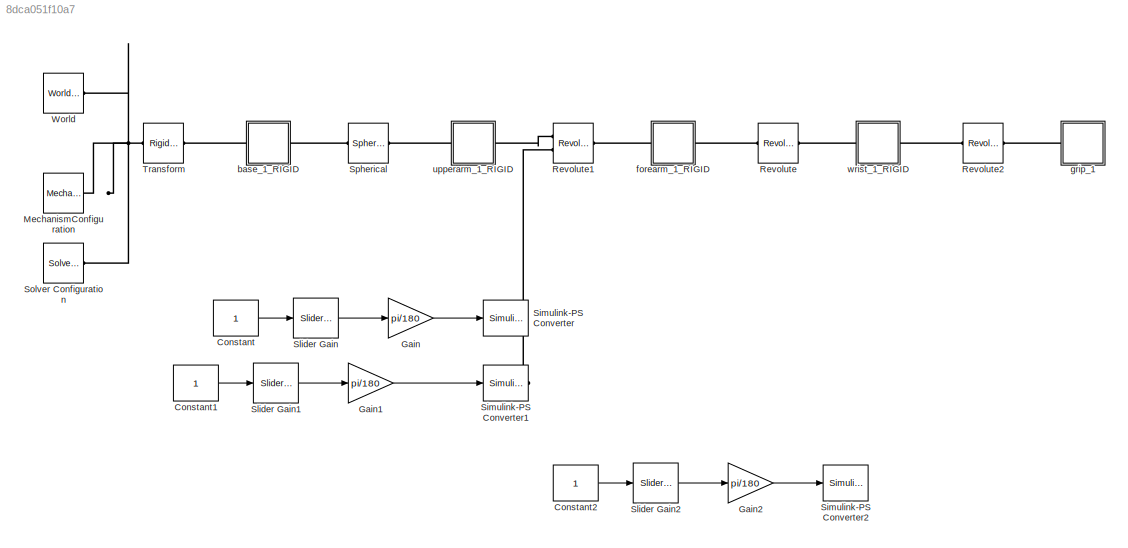
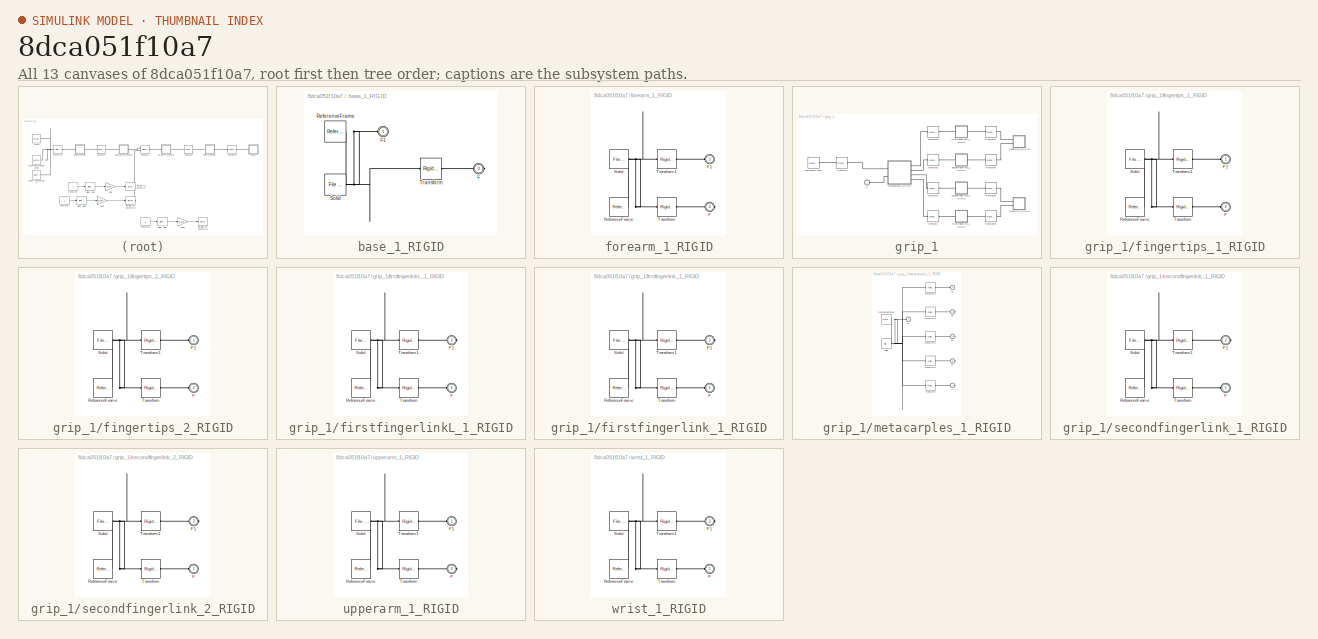
[diagram: thumbnail index - all 13 canvases of the model, root first then tree order]
MODEL slx_8dca051f10a7
KIND model
CONFIG AbsTol = auto
CONFIG EnableMultiTasking = off
CONFIG FixedStep = auto
CONFIG MaxStep = auto
CONFIG MinStep = auto
CONFIG RelTol = 1e-3
CONFIG SampleTimeConstraint = Unconstrained
CONFIG SolverName = VariableStepAuto
CONFIG StartTime = 0.0
CONFIG StopTime = 10.0
WORKSPACE source: external: MATLAB File  (data not in archive)
BLOCK [Constant] Constant
BLOCK [Constant] Constant1
BLOCK [Constant] Constant2
BLOCK [Gain] Gain
  Gain = pi/180
BLOCK [Gain] Gain1
  Gain = pi/180
BLOCK [Gain] Gain2
  Gain = pi/180
BLOCK [Reference] MechanismConfiguration  REF=sm_lib/Utilities/Mechanism
Configuration
  Ports = [0, 0, 0, 0, 0, 0, 1]
  SourceBlock = sm_lib/Utilities/Mechanism\nConfiguration
  SourceProductBaseCode = MS
  SourceType = Mechanism\nConfiguration
BLOCK [Reference] Revolute  REF=sm_lib/Joints/Revolute Joint
  Ports = [0, 0, 0, 0, 0, 1, 1]
  SourceBlock = sm_lib/Joints/Revolute Joint
  SourceProductBaseCode = MS
  SourceType = Revolute Joint
BLOCK [Reference] Revolute1  REF=sm_lib/Joints/Revolute Joint
  Ports = [0, 0, 0, 0, 0, 2, 1]
  SourceBlock = sm_lib/Joints/Revolute Joint
  SourceProductBaseCode = MS
  SourceType = Revolute Joint
BLOCK [Reference] Revolute2  REF=sm_lib/Joints/Revolute Joint
  Ports = [0, 0, 0, 0, 0, 1, 1]
  SourceBlock = sm_lib/Joints/Revolute Joint
  SourceProductBaseCode = MS
  SourceType = Revolute Joint
BLOCK [Reference] Simulink-PS Converter  REF=nesl_utility/Simulink-PS
Converter
  Ports = [1, 0, 0, 0, 0, 0, 1]
  SourceBlock = nesl_utility/Simulink-PS\nConverter
  SourceProductBaseCode = SS
  SourceType = Simulink-PS\nConverter
BLOCK [Reference] Simulink-PS Converter1  REF=nesl_utility/Simulink-PS
Converter
  Ports = [1, 0, 0, 0, 0, 0, 1]
  SourceBlock = nesl_utility/Simulink-PS\nConverter
  SourceProductBaseCode = SS
  SourceType = Simulink-PS\nConverter
BLOCK [Reference] Simulink-PS Converter2  REF=nesl_utility/Simulink-PS
Converter
  Ports = [1, 0, 0, 0, 0, 0, 1]
  SourceBlock = nesl_utility/Simulink-PS\nConverter
  SourceProductBaseCode = SS
  SourceType = Simulink-PS\nConverter
BLOCK [Reference] Slider Gain  REF=simulink/Math
Operations/Slider
Gain
  Ports = [1, 1]
  SourceBlock = simulink/Math\nOperations/Slider\nGain
  SourceProductBaseCode = SL
  SourceType = Slider Gain
BLOCK [Reference] Slider Gain1  REF=simulink/Math
Operations/Slider
Gain
  Ports = [1, 1]
  SourceBlock = simulink/Math\nOperations/Slider\nGain
  SourceProductBaseCode = SL
  SourceType = Slider Gain
BLOCK [Reference] Slider Gain2  REF=simulink/Math
Operations/Slider
Gain
  Ports = [1, 1]
  SourceBlock = simulink/Math\nOperations/Slider\nGain
  SourceProductBaseCode = SL
  SourceType = Slider Gain
BLOCK [Reference] Solver Configuration  REF=nesl_utility/Solver
Configuration
  Ports = [0, 0, 0, 0, 0, 0, 1]
  SourceBlock = nesl_utility/Solver\nConfiguration
  SourceProductBaseCode = SS
  SourceType = Solver\nConfiguration
BLOCK [Reference] Spherical  REF=sm_lib/Joints/Spherical
Joint
  Ports = [0, 0, 0, 0, 0, 1, 1]
  SourceBlock = sm_lib/Joints/Spherical\nJoint
  SourceProductBaseCode = MS
  SourceType = Spherical\nJoint
BLOCK [Reference] Transform  REF=sm_lib/Frames and
Transforms/Rigid
Transform
  Ports = [0, 0, 0, 0, 0, 1, 1]
  SourceBlock = sm_lib/Frames and\nTransforms/Rigid\nTransform
  SourceProductBaseCode = MS
  SourceType = Rigid\nTransform
BLOCK [Reference] World  REF=sm_lib/Frames and
Transforms/World Frame
  Ports = [0, 0, 0, 0, 0, 0, 1]
  SourceBlock = sm_lib/Frames and\nTransforms/World Frame
  SourceProductBaseCode = MS
  SourceType = World Frame
BLOCK [SubSystem] base_1_RIGID
  Ports = [0, 0, 0, 0, 0, 1, 1]
  RequestExecContextInheritance = off
BLOCK [PMIOPort] base_1_RIGID/F
  Port = 2
  Side = Right
BLOCK [PMIOPort] base_1_RIGID/F1
  Side = Left
BLOCK [Reference] base_1_RIGID/ReferenceFrame  REF=sm_lib/Frames and
Transforms/Reference
Frame
  Ports = [0, 0, 0, 0, 0, 0, 1]
  SourceBlock = sm_lib/Frames and\nTransforms/Reference\nFrame
  SourceProductBaseCode = MS
  SourceType = Reference\nFrame
BLOCK [Reference] base_1_RIGID/Solid  REF=sm_lib/Body Elements/File Solid
  Ports = [0, 0, 0, 0, 0, 0, 1]
  SourceBlock = sm_lib/Body Elements/File Solid
  SourceProductBaseCode = MS
  SourceType = File Solid
BLOCK [Reference] base_1_RIGID/Transform  REF=sm_lib/Frames and
Transforms/Rigid
Transform
  Ports = [0, 0, 0, 0, 0, 1, 1]
  SourceBlock = sm_lib/Frames and\nTransforms/Rigid\nTransform
  SourceProductBaseCode = MS
  SourceType = Rigid\nTransform
BLOCK [SubSystem] forearm_1_RIGID
  Ports = [0, 0, 0, 0, 0, 1, 1]
  RequestExecContextInheritance = off
BLOCK [PMIOPort] forearm_1_RIGID/F
  Port = 2
  Side = Right
BLOCK [PMIOPort] forearm_1_RIGID/F1
  Side = Left
BLOCK [Reference] forearm_1_RIGID/ReferenceFrame  REF=sm_lib/Frames and
Transforms/Reference
Frame
  Ports = [0, 0, 0, 0, 0, 0, 1]
  SourceBlock = sm_lib/Frames and\nTransforms/Reference\nFrame
  SourceProductBaseCode = MS
  SourceType = Reference\nFrame
BLOCK [Reference] forearm_1_RIGID/Solid  REF=sm_lib/Body Elements/File Solid
  Ports = [0, 0, 0, 0, 0, 0, 1]
  SourceBlock = sm_lib/Body Elements/File Solid
  SourceProductBaseCode = MS
  SourceType = File Solid
BLOCK [Reference] forearm_1_RIGID/Transform  REF=sm_lib/Frames and
Transforms/Rigid
Transform
  Ports = [0, 0, 0, 0, 0, 1, 1]
  SourceBlock = sm_lib/Frames and\nTransforms/Rigid\nTransform
  SourceProductBaseCode = MS
  SourceType = Rigid\nTransform
BLOCK [Reference] forearm_1_RIGID/Transform1  REF=sm_lib/Frames and
Transforms/Rigid
Transform
  Ports = [0, 0, 0, 0, 0, 1, 1]
  SourceBlock = sm_lib/Frames and\nTransforms/Rigid\nTransform
  SourceProductBaseCode = MS
  SourceType = Rigid\nTransform
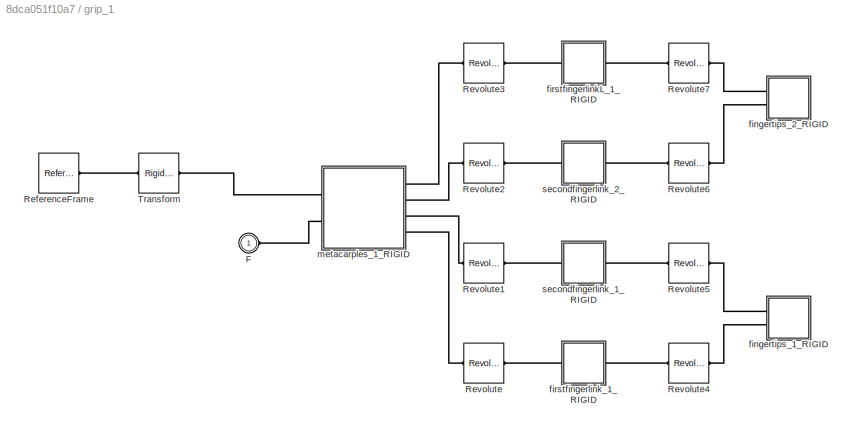
BLOCK [SubSystem] grip_1
  Ports = [0, 0, 0, 0, 0, 1]
  RequestExecContextInheritance = off
BLOCK [PMIOPort] grip_1/F
  Side = Left
BLOCK [Reference] grip_1/ReferenceFrame  REF=sm_lib/Frames and
Transforms/Reference
Frame
  Ports = [0, 0, 0, 0, 0, 0, 1]
  SourceBlock = sm_lib/Frames and\nTransforms/Reference\nFrame
  SourceProductBaseCode = MS
  SourceType = Reference\nFrame
BLOCK [Reference] grip_1/Revolute  REF=sm_lib/Joints/Revolute Joint
  Ports = [0, 0, 0, 0, 0, 1, 1]
  SourceBlock = sm_lib/Joints/Revolute Joint
  SourceProductBaseCode = MS
  SourceType = Revolute Joint
BLOCK [Reference] grip_1/Revolute1  REF=sm_lib/Joints/Revolute Joint
  Ports = [0, 0, 0, 0, 0, 1, 1]
  SourceBlock = sm_lib/Joints/Revolute Joint
  SourceProductBaseCode = MS
  SourceType = Revolute Joint
BLOCK [Reference] grip_1/Revolute2  REF=sm_lib/Joints/Revolute Joint
  Ports = [0, 0, 0, 0, 0, 1, 1]
  SourceBlock = sm_lib/Joints/Revolute Joint
  SourceProductBaseCode = MS
  SourceType = Revolute Joint
BLOCK [Reference] grip_1/Revolute3  REF=sm_lib/Joints/Revolute Joint
  Ports = [0, 0, 0, 0, 0, 1, 1]
  SourceBlock = sm_lib/Joints/Revolute Joint
  SourceProductBaseCode = MS
  SourceType = Revolute Joint
BLOCK [Reference] grip_1/Revolute4  REF=sm_lib/Joints/Revolute Joint
  Ports = [0, 0, 0, 0, 0, 1, 1]
  SourceBlock = sm_lib/Joints/Revolute Joint
  SourceProductBaseCode = MS
  SourceType = Revolute Joint
BLOCK [Reference] grip_1/Revolute5  REF=sm_lib/Joints/Revolute Joint
  Ports = [0, 0, 0, 0, 0, 1, 1]
  SourceBlock = sm_lib/Joints/Revolute Joint
  SourceProductBaseCode = MS
  SourceType = Revolute Joint
BLOCK [Reference] grip_1/Revolute6  REF=sm_lib/Joints/Revolute Joint
  Ports = [0, 0, 0, 0, 0, 1, 1]
  SourceBlock = sm_lib/Joints/Revolute Joint
  SourceProductBaseCode = MS
  SourceType = Revolute Joint
BLOCK [Reference] grip_1/Revolute7  REF=sm_lib/Joints/Revolute Joint
  Ports = [0, 0, 0, 0, 0, 1, 1]
  SourceBlock = sm_lib/Joints/Revolute Joint
  SourceProductBaseCode = MS
  SourceType = Revolute Joint
BLOCK [Reference] grip_1/Transform  REF=sm_lib/Frames and
Transforms/Rigid
Transform
  Ports = [0, 0, 0, 0, 0, 1, 1]
  SourceBlock = sm_lib/Frames and\nTransforms/Rigid\nTransform
  SourceProductBaseCode = MS
  SourceType = Rigid\nTransform
BLOCK [SubSystem] grip_1/fingertips_1_RIGID
  Ports = [0, 0, 0, 0, 0, 2]
  RequestExecContextInheritance = off
BLOCK [PMIOPort] grip_1/fingertips_1_RIGID/F
  Port = 2
  Side = Left
BLOCK [PMIOPort] grip_1/fingertips_1_RIGID/F1
  Side = Left
BLOCK [Reference] grip_1/fingertips_1_RIGID/ReferenceFrame  REF=sm_lib/Frames and
Transforms/Reference
Frame
  Ports = [0, 0, 0, 0, 0, 0, 1]
  SourceBlock = sm_lib/Frames and\nTransforms/Reference\nFrame
  SourceProductBaseCode = MS
  SourceType = Reference\nFrame
BLOCK [Reference] grip_1/fingertips_1_RIGID/Solid  REF=sm_lib/Body Elements/File Solid
  Ports = [0, 0, 0, 0, 0, 0, 1]
  SourceBlock = sm_lib/Body Elements/File Solid
  SourceProductBaseCode = MS
  SourceType = File Solid
BLOCK [Reference] grip_1/fingertips_1_RIGID/Transform  REF=sm_lib/Frames and
Transforms/Rigid
Transform
  Ports = [0, 0, 0, 0, 0, 1, 1]
  SourceBlock = sm_lib/Frames and\nTransforms/Rigid\nTransform
  SourceProductBaseCode = MS
  SourceType = Rigid\nTransform
BLOCK [Reference] grip_1/fingertips_1_RIGID/Transform1  REF=sm_lib/Frames and
Transforms/Rigid
Transform
  Ports = [0, 0, 0, 0, 0, 1, 1]
  SourceBlock = sm_lib/Frames and\nTransforms/Rigid\nTransform
  SourceProductBaseCode = MS
  SourceType = Rigid\nTransform
BLOCK [SubSystem] grip_1/fingertips_2_RIGID
  Ports = [0, 0, 0, 0, 0, 2]
  RequestExecContextInheritance = off
BLOCK [PMIOPort] grip_1/fingertips_2_RIGID/F
  Port = 2
  Side = Left
BLOCK [PMIOPort] grip_1/fingertips_2_RIGID/F1
  Side = Left
BLOCK [Reference] grip_1/fingertips_2_RIGID/ReferenceFrame  REF=sm_lib/Frames and
Transforms/Reference
Frame
  Ports = [0, 0, 0, 0, 0, 0, 1]
  SourceBlock = sm_lib/Frames and\nTransforms/Reference\nFrame
  SourceProductBaseCode = MS
  SourceType = Reference\nFrame
BLOCK [Reference] grip_1/fingertips_2_RIGID/Solid  REF=sm_lib/Body Elements/File Solid
  Ports = [0, 0, 0, 0, 0, 0, 1]
  SourceBlock = sm_lib/Body Elements/File Solid
  SourceProductBaseCode = MS
  SourceType = File Solid
BLOCK [Reference] grip_1/fingertips_2_RIGID/Transform  REF=sm_lib/Frames and
Transforms/Rigid
Transform
  Ports = [0, 0, 0, 0, 0, 1, 1]
  SourceBlock = sm_lib/Frames and\nTransforms/Rigid\nTransform
  SourceProductBaseCode = MS
  SourceType = Rigid\nTransform
BLOCK [Reference] grip_1/fingertips_2_RIGID/Transform1  REF=sm_lib/Frames and
Transforms/Rigid
Transform
  Ports = [0, 0, 0, 0, 0, 1, 1]
  SourceBlock = sm_lib/Frames and\nTransforms/Rigid\nTransform
  SourceProductBaseCode = MS
  SourceType = Rigid\nTransform
BLOCK [SubSystem] grip_1/firstfingerlinkL_1_RIGID
  Ports = [0, 0, 0, 0, 0, 1, 1]
  RequestExecContextInheritance = off
BLOCK [PMIOPort] grip_1/firstfingerlinkL_1_RIGID/F
  Side = Left
BLOCK [PMIOPort] grip_1/firstfingerlinkL_1_RIGID/F1
  Port = 2
  Side = Right
BLOCK [Reference] grip_1/firstfingerlinkL_1_RIGID/ReferenceFrame  REF=sm_lib/Frames and
Transforms/Reference
Frame
  Ports = [0, 0, 0, 0, 0, 0, 1]
  SourceBlock = sm_lib/Frames and\nTransforms/Reference\nFrame
  SourceProductBaseCode = MS
  SourceType = Reference\nFrame
BLOCK [Reference] grip_1/firstfingerlinkL_1_RIGID/Solid  REF=sm_lib/Body Elements/File Solid
  Ports = [0, 0, 0, 0, 0, 0, 1]
  SourceBlock = sm_lib/Body Elements/File Solid
  SourceProductBaseCode = MS
  SourceType = File Solid
BLOCK [Reference] grip_1/firstfingerlinkL_1_RIGID/Transform  REF=sm_lib/Frames and
Transforms/Rigid
Transform
  Ports = [0, 0, 0, 0, 0, 1, 1]
  SourceBlock = sm_lib/Frames and\nTransforms/Rigid\nTransform
  SourceProductBaseCode = MS
  SourceType = Rigid\nTransform
BLOCK [Reference] grip_1/firstfingerlinkL_1_RIGID/Transform1  REF=sm_lib/Frames and
Transforms/Rigid
Transform
  Ports = [0, 0, 0, 0, 0, 1, 1]
  SourceBlock = sm_lib/Frames and\nTransforms/Rigid\nTransform
  SourceProductBaseCode = MS
  SourceType = Rigid\nTransform
BLOCK [SubSystem] grip_1/firstfingerlink_1_RIGID
  Ports = [0, 0, 0, 0, 0, 1, 1]
  RequestExecContextInheritance = off
BLOCK [PMIOPort] grip_1/firstfingerlink_1_RIGID/F
  Side = Left
BLOCK [PMIOPort] grip_1/firstfingerlink_1_RIGID/F1
  Port = 2
  Side = Right
BLOCK [Reference] grip_1/firstfingerlink_1_RIGID/ReferenceFrame  REF=sm_lib/Frames and
Transforms/Reference
Frame
  Ports = [0, 0, 0, 0, 0, 0, 1]
  SourceBlock = sm_lib/Frames and\nTransforms/Reference\nFrame
  SourceProductBaseCode = MS
  SourceType = Reference\nFrame
BLOCK [Reference] grip_1/firstfingerlink_1_RIGID/Solid  REF=sm_lib/Body Elements/File Solid
  Ports = [0, 0, 0, 0, 0, 0, 1]
  SourceBlock = sm_lib/Body Elements/File Solid
  SourceProductBaseCode = MS
  SourceType = File Solid
BLOCK [Reference] grip_1/firstfingerlink_1_RIGID/Transform  REF=sm_lib/Frames and
Transforms/Rigid
Transform
  Ports = [0, 0, 0, 0, 0, 1, 1]
  SourceBlock = sm_lib/Frames and\nTransforms/Rigid\nTransform
  SourceProductBaseCode = MS
  SourceType = Rigid\nTransform
BLOCK [Reference] grip_1/firstfingerlink_1_RIGID/Transform1  REF=sm_lib/Frames and
Transforms/Rigid
Transform
  Ports = [0, 0, 0, 0, 0, 1, 1]
  SourceBlock = sm_lib/Frames and\nTransforms/Rigid\nTransform
  SourceProductBaseCode = MS
  SourceType = Rigid\nTransform
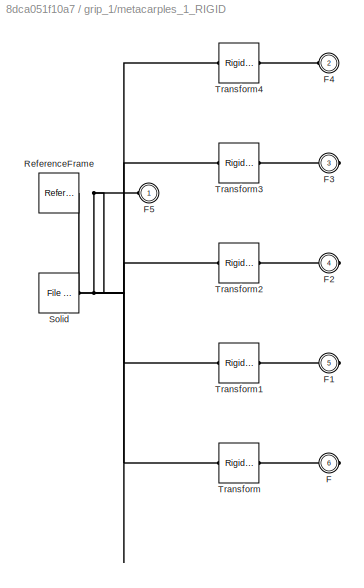
BLOCK [SubSystem] grip_1/metacarples_1_RIGID
  Ports = [0, 0, 0, 0, 0, 2, 4]
  RequestExecContextInheritance = off
BLOCK [PMIOPort] grip_1/metacarples_1_RIGID/F
  Port = 6
  Side = Right
BLOCK [PMIOPort] grip_1/metacarples_1_RIGID/F1
  Port = 5
  Side = Right
BLOCK [PMIOPort] grip_1/metacarples_1_RIGID/F2
  Port = 4
  Side = Right
BLOCK [PMIOPort] grip_1/metacarples_1_RIGID/F3
  Port = 3
  Side = Right
BLOCK [PMIOPort] grip_1/metacarples_1_RIGID/F4
  Port = 2
  Side = Left
BLOCK [PMIOPort] grip_1/metacarples_1_RIGID/F5
  Side = Left
BLOCK [Reference] grip_1/metacarples_1_RIGID/ReferenceFrame  REF=sm_lib/Frames and
Transforms/Reference
Frame
  Ports = [0, 0, 0, 0, 0, 0, 1]
  SourceBlock = sm_lib/Frames and\nTransforms/Reference\nFrame
  SourceProductBaseCode = MS
  SourceType = Reference\nFrame
BLOCK [Reference] grip_1/metacarples_1_RIGID/Solid  REF=sm_lib/Body Elements/File Solid
  Ports = [0, 0, 0, 0, 0, 0, 1]
  SourceBlock = sm_lib/Body Elements/File Solid
  SourceProductBaseCode = MS
  SourceType = File Solid
BLOCK [Reference] grip_1/metacarples_1_RIGID/Transform  REF=sm_lib/Frames and
Transforms/Rigid
Transform
  Ports = [0, 0, 0, 0, 0, 1, 1]
  SourceBlock = sm_lib/Frames and\nTransforms/Rigid\nTransform
  SourceProductBaseCode = MS
  SourceType = Rigid\nTransform
BLOCK [Reference] grip_1/metacarples_1_RIGID/Transform1  REF=sm_lib/Frames and
Transforms/Rigid
Transform
  Ports = [0, 0, 0, 0, 0, 1, 1]
  SourceBlock = sm_lib/Frames and\nTransforms/Rigid\nTransform
  SourceProductBaseCode = MS
  SourceType = Rigid\nTransform
BLOCK [Reference] grip_1/metacarples_1_RIGID/Transform2  REF=sm_lib/Frames and
Transforms/Rigid
Transform
  Ports = [0, 0, 0, 0, 0, 1, 1]
  SourceBlock = sm_lib/Frames and\nTransforms/Rigid\nTransform
  SourceProductBaseCode = MS
  SourceType = Rigid\nTransform
BLOCK [Reference] grip_1/metacarples_1_RIGID/Transform3  REF=sm_lib/Frames and
Transforms/Rigid
Transform
  Ports = [0, 0, 0, 0, 0, 1, 1]
  SourceBlock = sm_lib/Frames and\nTransforms/Rigid\nTransform
  SourceProductBaseCode = MS
  SourceType = Rigid\nTransform
BLOCK [Reference] grip_1/metacarples_1_RIGID/Transform4  REF=sm_lib/Frames and
Transforms/Rigid
Transform
  Ports = [0, 0, 0, 0, 0, 1, 1]
  SourceBlock = sm_lib/Frames and\nTransforms/Rigid\nTransform
  SourceProductBaseCode = MS
  SourceType = Rigid\nTransform
BLOCK [SubSystem] grip_1/secondfingerlink_1_RIGID
  Ports = [0, 0, 0, 0, 0, 1, 1]
  RequestExecContextInheritance = off
BLOCK [PMIOPort] grip_1/secondfingerlink_1_RIGID/F
  Side = Left
BLOCK [PMIOPort] grip_1/secondfingerlink_1_RIGID/F1
  Port = 2
  Side = Right
BLOCK [Reference] grip_1/secondfingerlink_1_RIGID/ReferenceFrame  REF=sm_lib/Frames and
Transforms/Reference
Frame
  Ports = [0, 0, 0, 0, 0, 0, 1]
  SourceBlock = sm_lib/Frames and\nTransforms/Reference\nFrame
  SourceProductBaseCode = MS
  SourceType = Reference\nFrame
BLOCK [Reference] grip_1/secondfingerlink_1_RIGID/Solid  REF=sm_lib/Body Elements/File Solid
  Ports = [0, 0, 0, 0, 0, 0, 1]
  SourceBlock = sm_lib/Body Elements/File Solid
  SourceProductBaseCode = MS
  SourceType = File Solid
BLOCK [Reference] grip_1/secondfingerlink_1_RIGID/Transform  REF=sm_lib/Frames and
Transforms/Rigid
Transform
  Ports = [0, 0, 0, 0, 0, 1, 1]
  SourceBlock = sm_lib/Frames and\nTransforms/Rigid\nTransform
  SourceProductBaseCode = MS
  SourceType = Rigid\nTransform
BLOCK [Reference] grip_1/secondfingerlink_1_RIGID/Transform1  REF=sm_lib/Frames and
Transforms/Rigid
Transform
  Ports = [0, 0, 0, 0, 0, 1, 1]
  SourceBlock = sm_lib/Frames and\nTransforms/Rigid\nTransform
  SourceProductBaseCode = MS
  SourceType = Rigid\nTransform
BLOCK [SubSystem] grip_1/secondfingerlink_2_RIGID
  Ports = [0, 0, 0, 0, 0, 1, 1]
  RequestExecContextInheritance = off
BLOCK [PMIOPort] grip_1/secondfingerlink_2_RIGID/F
  Side = Left
BLOCK [PMIOPort] grip_1/secondfingerlink_2_RIGID/F1
  Port = 2
  Side = Right
BLOCK [Reference] grip_1/secondfingerlink_2_RIGID/ReferenceFrame  REF=sm_lib/Frames and
Transforms/Reference
Frame
  Ports = [0, 0, 0, 0, 0, 0, 1]
  SourceBlock = sm_lib/Frames and\nTransforms/Reference\nFrame
  SourceProductBaseCode = MS
  SourceType = Reference\nFrame
BLOCK [Reference] grip_1/secondfingerlink_2_RIGID/Solid  REF=sm_lib/Body Elements/File Solid
  Ports = [0, 0, 0, 0, 0, 0, 1]
  SourceBlock = sm_lib/Body Elements/File Solid
  SourceProductBaseCode = MS
  SourceType = File Solid
BLOCK [Reference] grip_1/secondfingerlink_2_RIGID/Transform  REF=sm_lib/Frames and
Transforms/Rigid
Transform
  Ports = [0, 0, 0, 0, 0, 1, 1]
  SourceBlock = sm_lib/Frames and\nTransforms/Rigid\nTransform
  SourceProductBaseCode = MS
  SourceType = Rigid\nTransform
BLOCK [Reference] grip_1/secondfingerlink_2_RIGID/Transform1  REF=sm_lib/Frames and
Transforms/Rigid
Transform
  Ports = [0, 0, 0, 0, 0, 1, 1]
  SourceBlock = sm_lib/Frames and\nTransforms/Rigid\nTransform
  SourceProductBaseCode = MS
  SourceType = Rigid\nTransform
BLOCK [SubSystem] upperarm_1_RIGID
  Ports = [0, 0, 0, 0, 0, 1, 1]
  RequestExecContextInheritance = off
BLOCK [PMIOPort] upperarm_1_RIGID/F
  Port = 2
  Side = Right
BLOCK [PMIOPort] upperarm_1_RIGID/F1
  Side = Left
BLOCK [Reference] upperarm_1_RIGID/ReferenceFrame  REF=sm_lib/Frames and
Transforms/Reference
Frame
  Ports = [0, 0, 0, 0, 0, 0, 1]
  SourceBlock = sm_lib/Frames and\nTransforms/Reference\nFrame
  SourceProductBaseCode = MS
  SourceType = Reference\nFrame
BLOCK [Reference] upperarm_1_RIGID/Solid  REF=sm_lib/Body Elements/File Solid
  Ports = [0, 0, 0, 0, 0, 0, 1]
  SourceBlock = sm_lib/Body Elements/File Solid
  SourceProductBaseCode = MS
  SourceType = File Solid
BLOCK [Reference] upperarm_1_RIGID/Transform  REF=sm_lib/Frames and
Transforms/Rigid
Transform
  Ports = [0, 0, 0, 0, 0, 1, 1]
  SourceBlock = sm_lib/Frames and\nTransforms/Rigid\nTransform
  SourceProductBaseCode = MS
  SourceType = Rigid\nTransform
BLOCK [Reference] upperarm_1_RIGID/Transform1  REF=sm_lib/Frames and
Transforms/Rigid
Transform
  Ports = [0, 0, 0, 0, 0, 1, 1]
  SourceBlock = sm_lib/Frames and\nTransforms/Rigid\nTransform
  SourceProductBaseCode = MS
  SourceType = Rigid\nTransform
BLOCK [SubSystem] wrist_1_RIGID
  Ports = [0, 0, 0, 0, 0, 1, 1]
  RequestExecContextInheritance = off
BLOCK [PMIOPort] wrist_1_RIGID/F
  Side = Left
BLOCK [PMIOPort] wrist_1_RIGID/F1
  Port = 2
  Side = Right
BLOCK [Reference] wrist_1_RIGID/ReferenceFrame  REF=sm_lib/Frames and
Transforms/Reference
Frame
  Ports = [0, 0, 0, 0, 0, 0, 1]
  SourceBlock = sm_lib/Frames and\nTransforms/Reference\nFrame
  SourceProductBaseCode = MS
  SourceType = Reference\nFrame
BLOCK [Reference] wrist_1_RIGID/Solid  REF=sm_lib/Body Elements/File Solid
  Ports = [0, 0, 0, 0, 0, 0, 1]
  SourceBlock = sm_lib/Body Elements/File Solid
  SourceProductBaseCode = MS
  SourceType = File Solid
BLOCK [Reference] wrist_1_RIGID/Transform  REF=sm_lib/Frames and
Transforms/Rigid
Transform
  Ports = [0, 0, 0, 0, 0, 1, 1]
  SourceBlock = sm_lib/Frames and\nTransforms/Rigid\nTransform
  SourceProductBaseCode = MS
  SourceType = Rigid\nTransform
BLOCK [Reference] wrist_1_RIGID/Transform1  REF=sm_lib/Frames and
Transforms/Rigid
Transform
  Ports = [0, 0, 0, 0, 0, 1, 1]
  SourceBlock = sm_lib/Frames and\nTransforms/Rigid\nTransform
  SourceProductBaseCode = MS
  SourceType = Rigid\nTransform
LINE Constant1:1 -> Slider Gain1:1
LINE Constant2:1 -> Slider Gain2:1
LINE Constant:1 -> Slider Gain:1
LINE Gain1:1 -> Simulink-PS Converter1:1
LINE Gain2:1 -> Simulink-PS Converter2:1
LINE Gain:1 -> Simulink-PS Converter:1
LINE Slider Gain1:1 -> Gain1:1
LINE Slider Gain2:1 -> Gain2:1
LINE Slider Gain:1 -> Gain:1
PNET net1: MechanismConfiguration:RConn1 -- Solver Configuration:RConn1 -- Transform:LConn1 -- World:RConn1
PLINE Revolute1:LConn1 -- upperarm_1_RIGID:RConn1
PLINE Revolute1:LConn2 -- Simulink-PS Converter1:RConn1
PLINE Revolute1:RConn1 -- forearm_1_RIGID:LConn1
PLINE Revolute2:LConn1 -- wrist_1_RIGID:RConn1
PLINE Revolute2:RConn1 -- grip_1:LConn1
PLINE Revolute:LConn1 -- forearm_1_RIGID:RConn1
PLINE Revolute:RConn1 -- wrist_1_RIGID:LConn1
PLINE Spherical:LConn1 -- base_1_RIGID:RConn1
PLINE Spherical:RConn1 -- upperarm_1_RIGID:LConn1
PLINE Transform:RConn1 -- base_1_RIGID:LConn1
PNET net2: base_1_RIGID/F1:RConn1 -- base_1_RIGID/ReferenceFrame:RConn1 -- base_1_RIGID/Solid:RConn1 -- base_1_RIGID/Transform:LConn1
PLINE base_1_RIGID/F:RConn1 -- base_1_RIGID/Transform:RConn1
PLINE forearm_1_RIGID/F1:RConn1 -- forearm_1_RIGID/Transform1:RConn1
PLINE forearm_1_RIGID/F:RConn1 -- forearm_1_RIGID/Transform:RConn1
PNET net3: forearm_1_RIGID/ReferenceFrame:RConn1 -- forearm_1_RIGID/Solid:RConn1 -- forearm_1_RIGID/Transform1:LConn1 -- forearm_1_RIGID/Transform:LConn1
PLINE grip_1/F:RConn1 -- grip_1/metacarples_1_RIGID:LConn2
PLINE grip_1/ReferenceFrame:RConn1 -- grip_1/Transform:LConn1
PLINE grip_1/Revolute1:LConn1 -- grip_1/metacarples_1_RIGID:RConn3
PLINE grip_1/Revolute1:RConn1 -- grip_1/secondfingerlink_1_RIGID:LConn1
PLINE grip_1/Revolute2:LConn1 -- grip_1/metacarples_1_RIGID:RConn2
PLINE grip_1/Revolute2:RConn1 -- grip_1/secondfingerlink_2_RIGID:LConn1
PLINE grip_1/Revolute3:LConn1 -- grip_1/metacarples_1_RIGID:RConn1
PLINE grip_1/Revolute3:RConn1 -- grip_1/firstfingerlinkL_1_RIGID:LConn1
PLINE grip_1/Revolute4:LConn1 -- grip_1/firstfingerlink_1_RIGID:RConn1
PLINE grip_1/Revolute4:RConn1 -- grip_1/fingertips_1_RIGID:LConn2
PLINE grip_1/Revolute5:LConn1 -- grip_1/secondfingerlink_1_RIGID:RConn1
PLINE grip_1/Revolute5:RConn1 -- grip_1/fingertips_1_RIGID:LConn1
PLINE grip_1/Revolute6:LConn1 -- grip_1/secondfingerlink_2_RIGID:RConn1
PLINE grip_1/Revolute6:RConn1 -- grip_1/fingertips_2_RIGID:LConn2
PLINE grip_1/Revolute7:LConn1 -- grip_1/firstfingerlinkL_1_RIGID:RConn1
PLINE grip_1/Revolute7:RConn1 -- grip_1/fingertips_2_RIGID:LConn1
PLINE grip_1/Revolute:LConn1 -- grip_1/metacarples_1_RIGID:RConn4
PLINE grip_1/Revolute:RConn1 -- grip_1/firstfingerlink_1_RIGID:LConn1
PLINE grip_1/Transform:RConn1 -- grip_1/metacarples_1_RIGID:LConn1
PLINE grip_1/fingertips_1_RIGID/F1:RConn1 -- grip_1/fingertips_1_RIGID/Transform1:RConn1
PLINE grip_1/fingertips_1_RIGID/F:RConn1 -- grip_1/fingertips_1_RIGID/Transform:RConn1
PNET net4: grip_1/fingertips_1_RIGID/ReferenceFrame:RConn1 -- grip_1/fingertips_1_RIGID/Solid:RConn1 -- grip_1/fingertips_1_RIGID/Transform1:LConn1 -- grip_1/fingertips_1_RIGID/Transform:LConn1
PLINE grip_1/fingertips_2_RIGID/F1:RConn1 -- grip_1/fingertips_2_RIGID/Transform1:RConn1
PLINE grip_1/fingertips_2_RIGID/F:RConn1 -- grip_1/fingertips_2_RIGID/Transform:RConn1
PNET net5: grip_1/fingertips_2_RIGID/ReferenceFrame:RConn1 -- grip_1/fingertips_2_RIGID/Solid:RConn1 -- grip_1/fingertips_2_RIGID/Transform1:LConn1 -- grip_1/fingertips_2_RIGID/Transform:LConn1
PLINE grip_1/firstfingerlinkL_1_RIGID/F1:RConn1 -- grip_1/firstfingerlinkL_1_RIGID/Transform1:RConn1
PLINE grip_1/firstfingerlinkL_1_RIGID/F:RConn1 -- grip_1/firstfingerlinkL_1_RIGID/Transform:RConn1
PNET net6: grip_1/firstfingerlinkL_1_RIGID/ReferenceFrame:RConn1 -- grip_1/firstfingerlinkL_1_RIGID/Solid:RConn1 -- grip_1/firstfingerlinkL_1_RIGID/Transform1:LConn1 -- grip_1/firstfingerlinkL_1_RIGID/Transform:LConn1
PLINE grip_1/firstfingerlink_1_RIGID/F1:RConn1 -- grip_1/firstfingerlink_1_RIGID/Transform1:RConn1
PLINE grip_1/firstfingerlink_1_RIGID/F:RConn1 -- grip_1/firstfingerlink_1_RIGID/Transform:RConn1
PNET net7: grip_1/firstfingerlink_1_RIGID/ReferenceFrame:RConn1 -- grip_1/firstfingerlink_1_RIGID/Solid:RConn1 -- grip_1/firstfingerlink_1_RIGID/Transform1:LConn1 -- grip_1/firstfingerlink_1_RIGID/Transform:LConn1
PLINE grip_1/metacarples_1_RIGID/F1:RConn1 -- grip_1/metacarples_1_RIGID/Transform1:RConn1
PLINE grip_1/metacarples_1_RIGID/F2:RConn1 -- grip_1/metacarples_1_RIGID/Transform2:RConn1
PLINE grip_1/metacarples_1_RIGID/F3:RConn1 -- grip_1/metacarples_1_RIGID/Transform3:RConn1
PLINE grip_1/metacarples_1_RIGID/F4:RConn1 -- grip_1/metacarples_1_RIGID/Transform4:RConn1
PNET net8: grip_1/metacarples_1_RIGID/F5:RConn1 -- grip_1/metacarples_1_RIGID/ReferenceFrame:RConn1 -- grip_1/metacarples_1_RIGID/Solid:RConn1 -- grip_1/metacarples_1_RIGID/Transform1:LConn1 -- grip_1/metacarples_1_RIGID/Transform2:LConn1 -- grip_1/metacarples_1_RIGID/Transform3:LConn1 -- grip_1/metacarples_1_RIGID/Transform4:LConn1 -- grip_1/metacarples_1_RIGID/Transform:LConn1
PLINE grip_1/metacarples_1_RIGID/F:RConn1 -- grip_1/metacarples_1_RIGID/Transform:RConn1
PLINE grip_1/secondfingerlink_1_RIGID/F1:RConn1 -- grip_1/secondfingerlink_1_RIGID/Transform1:RConn1
PLINE grip_1/secondfingerlink_1_RIGID/F:RConn1 -- grip_1/secondfingerlink_1_RIGID/Transform:RConn1
PNET net9: grip_1/secondfingerlink_1_RIGID/ReferenceFrame:RConn1 -- grip_1/secondfingerlink_1_RIGID/Solid:RConn1 -- grip_1/secondfingerlink_1_RIGID/Transform1:LConn1 -- grip_1/secondfingerlink_1_RIGID/Transform:LConn1
PLINE grip_1/secondfingerlink_2_RIGID/F1:RConn1 -- grip_1/secondfingerlink_2_RIGID/Transform1:RConn1
PLINE grip_1/secondfingerlink_2_RIGID/F:RConn1 -- grip_1/secondfingerlink_2_RIGID/Transform:RConn1
PNET net10: grip_1/secondfingerlink_2_RIGID/ReferenceFrame:RConn1 -- grip_1/secondfingerlink_2_RIGID/Solid:RConn1 -- grip_1/secondfingerlink_2_RIGID/Transform1:LConn1 -- grip_1/secondfingerlink_2_RIGID/Transform:LConn1
PLINE upperarm_1_RIGID/F1:RConn1 -- upperarm_1_RIGID/Transform1:RConn1
PLINE upperarm_1_RIGID/F:RConn1 -- upperarm_1_RIGID/Transform:RConn1
PNET net11: upperarm_1_RIGID/ReferenceFrame:RConn1 -- upperarm_1_RIGID/Solid:RConn1 -- upperarm_1_RIGID/Transform1:LConn1 -- upperarm_1_RIGID/Transform:LConn1
PLINE wrist_1_RIGID/F1:RConn1 -- wrist_1_RIGID/Transform1:RConn1
PLINE wrist_1_RIGID/F:RConn1 -- wrist_1_RIGID/Transform:RConn1
PNET net12: wrist_1_RIGID/ReferenceFrame:RConn1 -- wrist_1_RIGID/Solid:RConn1 -- wrist_1_RIGID/Transform1:LConn1 -- wrist_1_RIGID/Transform:LConn1
note: PNET lines group multi-terminal physical nets as a canonical sorted terminal list (undirected conserving connections); 2-terminal nets keep the pairwise PLINE form
